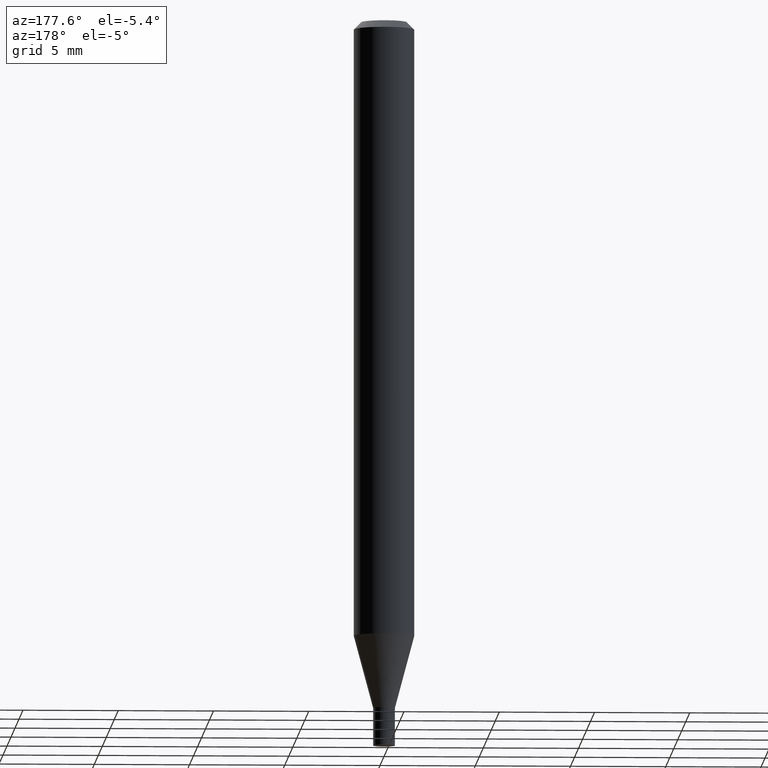
[diagram: clean part render]
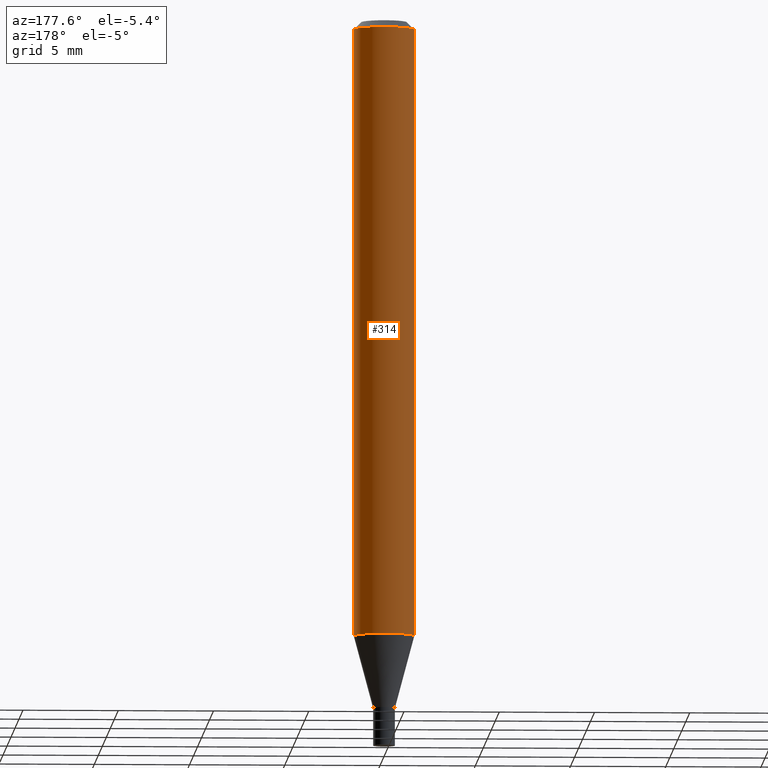
[diagram: same view with one face highlighted and labeled with its STEP entity id]
A machine part, auxiliary view. The second image highlights one B-rep face of the part: STEP entity #314.
In plain terms, the highlighted cylindrical surface (edge-blend (fillet) strip) has radius 1.5875 mm, axis along (-0, 0, 1).
Its self-contained STEP definition (entity closure, byte-faithful):
#16 = CYLINDRICAL_SURFACE ( 'NONE', #307, 0.06250000000000000000 ) ;
#32 = DIRECTION ( 'NONE',  ( -2.445468806185136877E-29, 3.491481338843145188E-15, 1.000000000000000000 ) ) ;
#40 = ORIENTED_EDGE ( 'NONE', *, *, #291, .F. ) ;
#48 = VERTEX_POINT ( 'NONE', #70 ) ;
#49 = ORIENTED_EDGE ( 'NONE', *, *, #403, .F. ) ;
#59 = EDGE_CURVE ( 'NONE', #313, #48, #435, .T. ) ;
#70 = CARTESIAN_POINT ( 'NONE',  ( -0.06250000000000000000, -1.803932417103912611E-15, -0.01499999999999999944 ) ) ;
#96 = DIRECTION ( 'NONE',  ( -2.445468806185136597E-29, 3.491481338843145583E-15, 1.000000000000000000 ) ) ;
#98 = CARTESIAN_POINT ( 'NONE',  ( 0.06250000000000000000, -4.888073874380388472E-16, -0.01499999999999999944 ) ) ;
#101 = VERTEX_POINT ( 'NONE', #98 ) ;
#123 = ORIENTED_EDGE ( 'NONE', *, *, #415, .T. ) ;
#132 = CIRCLE ( 'NONE', #207, 0.06250000000000000000 ) ;
#163 = DIRECTION ( 'NONE',  ( -2.445468806185136597E-29, 3.491481338843145583E-15, 1.000000000000000000 ) ) ;
#165 = CARTESIAN_POINT ( 'NONE',  ( 0.06250000000000000000, -4.880106201180694651E-15, -1.272717967697244434 ) ) ;
#168 = CARTESIAN_POINT ( 'NONE',  ( 3.668203209277705088E-31, -5.237222008264718399E-17, -0.01499999999999999944 ) ) ;
#173 = VERTEX_POINT ( 'NONE', #165 ) ;
#192 = EDGE_LOOP ( 'NONE', ( #123, #398, #49, #40 ) ) ;
#194 = CARTESIAN_POINT ( 'NONE',  ( 0.06250000000000000000, -4.364351673553916694E-16, 3.047610484872459871E-30 ) ) ;
#207 = AXIS2_PLACEMENT_3D ( 'NONE', #247, #96, #464 ) ;
#232 = CARTESIAN_POINT ( 'NONE',  ( 0.000000000000000000, 0.000000000000000000, 0.000000000000000000 ) ) ;
#247 = CARTESIAN_POINT ( 'NONE',  ( 3.112392089074953397E-29, -4.443671033825302981E-15, -1.272717967697244434 ) ) ;
#253 = VECTOR ( 'NONE', #334, 39.37007874015748143 ) ;
#257 = CARTESIAN_POINT ( 'NONE',  ( -0.06250000000000000000, 4.440892098500626162E-16, -3.074334431409316114E-30 ) ) ;
#269 = FACE_OUTER_BOUND ( 'NONE', #192, .T. ) ;
#272 = AXIS2_PLACEMENT_3D ( 'NONE', #168, #163, #421 ) ;
#291 = EDGE_CURVE ( 'NONE', #173, #101, #445, .T. ) ;
#294 = VECTOR ( 'NONE', #32, 39.37007874015748143 ) ;
#307 = AXIS2_PLACEMENT_3D ( 'NONE', #232, #332, #365 ) ;
#313 = VERTEX_POINT ( 'NONE', #400 ) ;
#314 = ADVANCED_FACE ( 'NONE', ( #269 ), #16, .T. ) ;
#332 = DIRECTION ( 'NONE',  ( -2.445468806185136597E-29, 3.491481338843145583E-15, 1.000000000000000000 ) ) ;
#334 = DIRECTION ( 'NONE',  ( -2.445468806185136877E-29, 3.491481338843145188E-15, 1.000000000000000000 ) ) ;
#365 = DIRECTION ( 'NONE',  ( 1.000000000000000000, -6.982962677686266711E-15, 4.876176775795935793E-29 ) ) ;
#398 = ORIENTED_EDGE ( 'NONE', *, *, #59, .T. ) ;
#400 = CARTESIAN_POINT ( 'NONE',  ( -0.06250000000000000000, -3.999581823975240365E-15, -1.272717967697244434 ) ) ;
#403 = EDGE_CURVE ( 'NONE', #101, #48, #408, .T. ) ;
#408 = CIRCLE ( 'NONE', #272, 0.06250000000000000000 ) ;
#415 = EDGE_CURVE ( 'NONE', #173, #313, #132, .T. ) ;
#421 = DIRECTION ( 'NONE',  ( 1.000000000000000000, -6.982962677686266711E-15, 0.000000000000000000 ) ) ;
#435 = LINE ( 'NONE', #257, #294 ) ;
#445 = LINE ( 'NONE', #194, #253 ) ;
#464 = DIRECTION ( 'NONE',  ( 1.000000000000000000, -6.982962677686262766E-15, 0.000000000000000000 ) ) ;